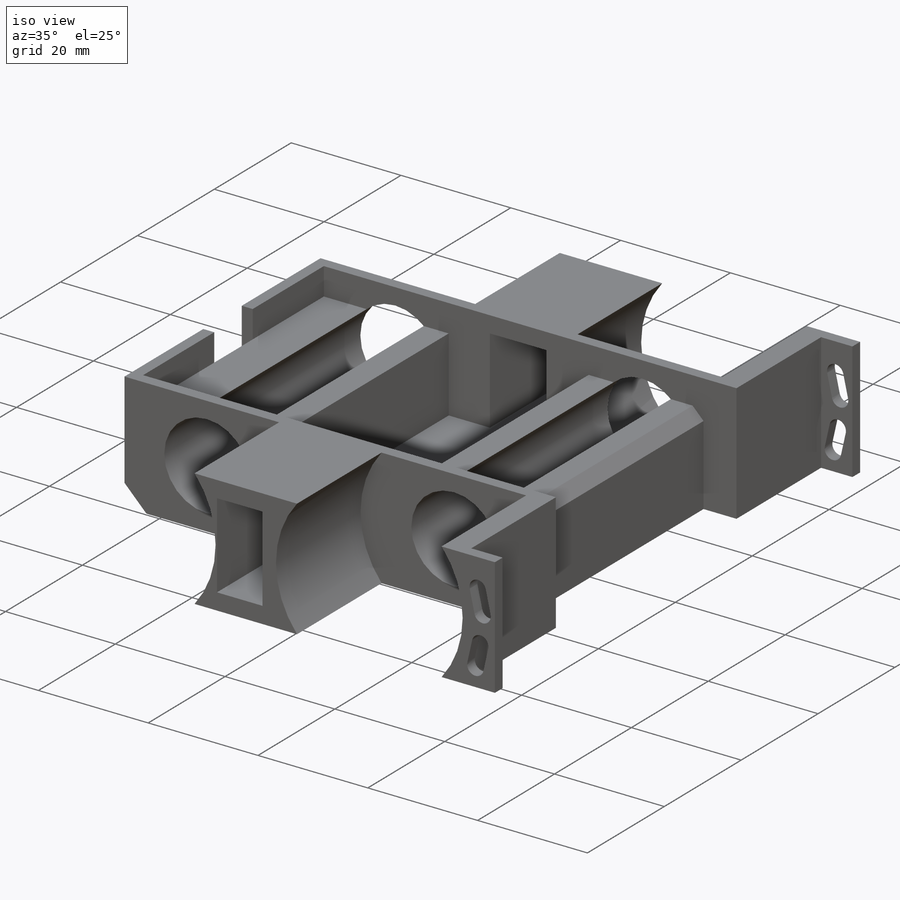
[diagram: iso view]
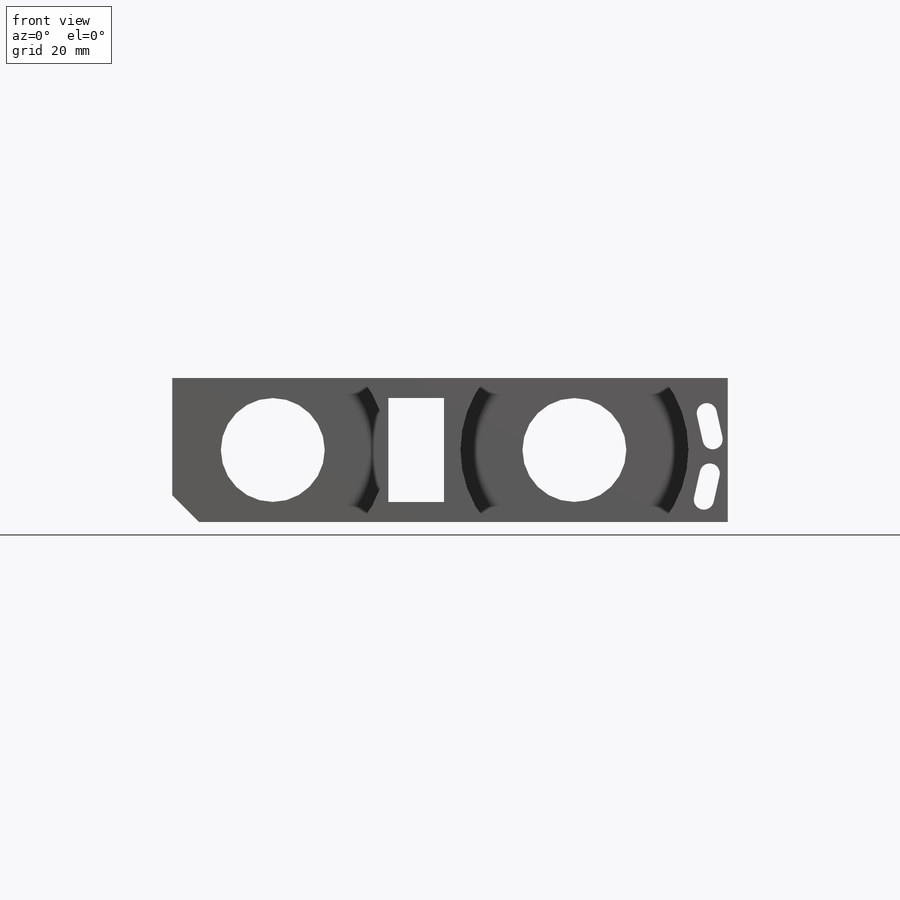
[diagram: front view]
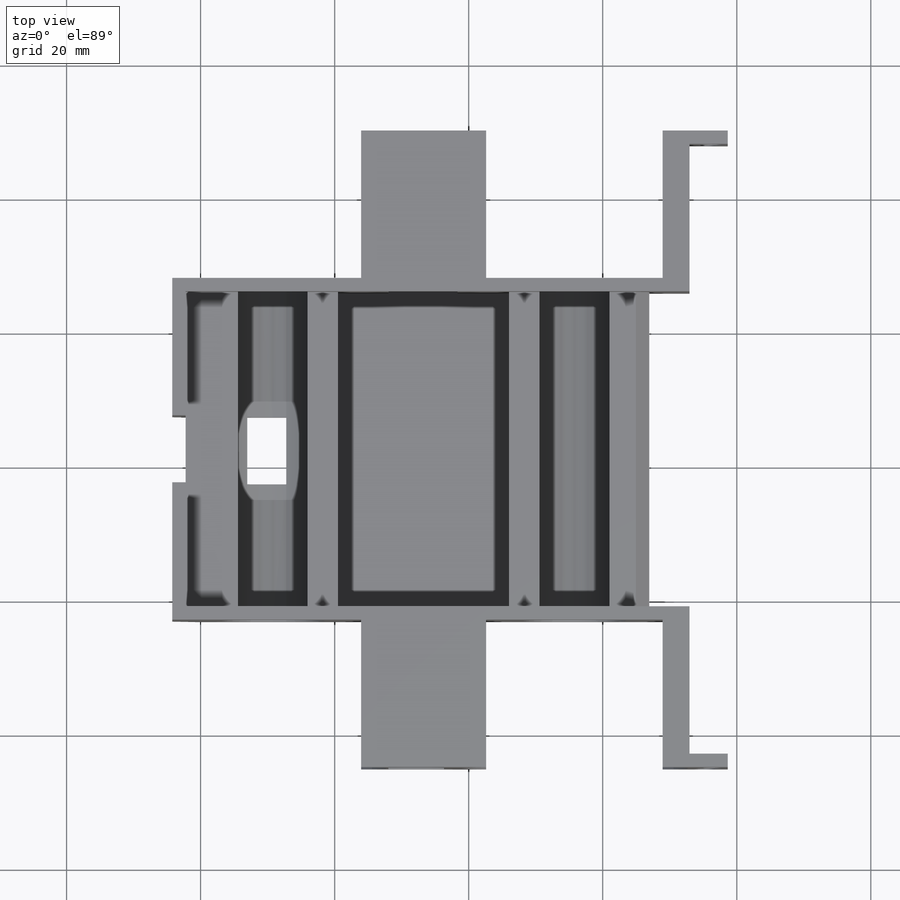
[diagram: top view]
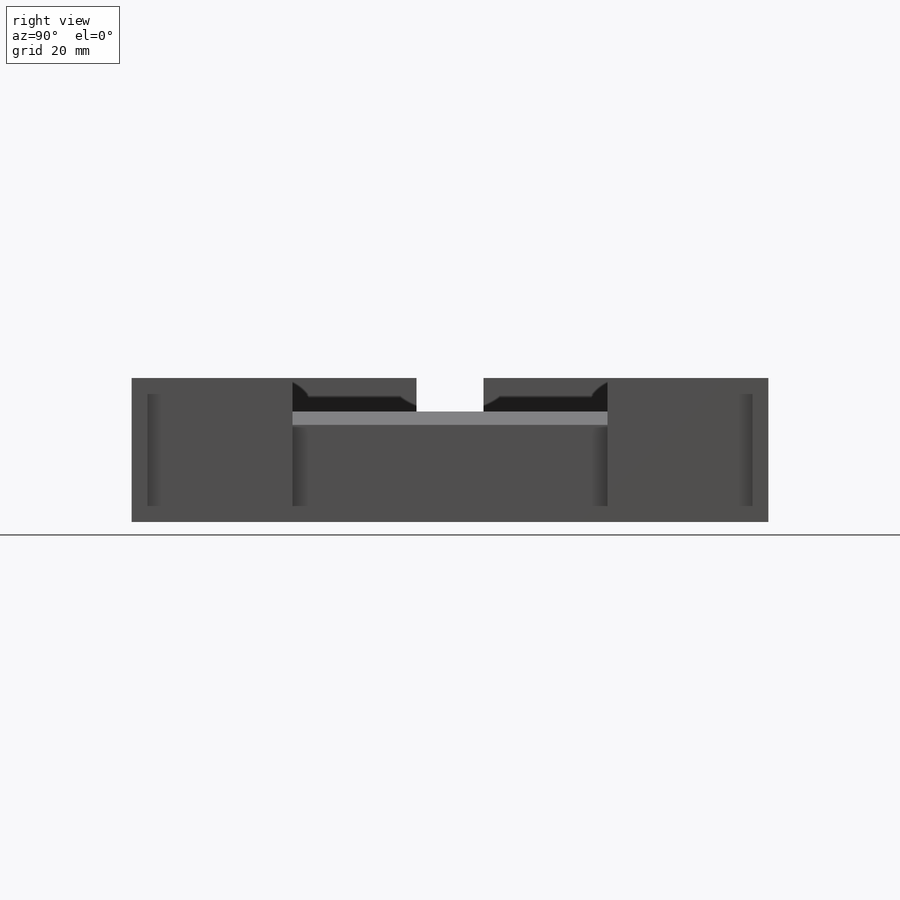
[diagram: right view]
SOLIDWORKS PART (.sldprt)
format: sldprt  version: not decoded by parser v0  size: 597,504 bytes
history: native  units: mm
features: sketch x19, cut_extrude x18, fillet x4, chamfer x4, material x1, extrude x1 (+13 scaffold rows collapsed)
feature tree (60):
  scaffold x13  (default folders/planes/origin — collapsed)
  material  "Material <not specified>"
  sketch  "Sketch1"  dims[D1=95.0mm D2=95.0mm]
  extrude  "Boss-Extrude1"  Depth=25mm
  sketch  "Sketch2"  dims[c1.D1=47.0mm c1.D2=15.0mm c2.D1=45.0mm c2.D2=10.75mm c2.D3=15.0mm]
  cut_extrude  "Cut-Extrude2"  Depth=100mm
  sketch  "Sketch3"  dims[D1=45.0mm D2=10.75mm D3=10.75mm]
  cut_extrude  "Cut-Extrude3"  Depth=22mm
  sketch  "Sketch4"  dims[D1=~14.061754mm]
  cut_extrude  "Cut-Extrude4"  Depth=22mm
  sketch  "Sketch5"
  cut_extrude  "Cut-Extrude5"  Depth=22mm
  sketch  "Sketch6"
  cut_extrude  "Cut-Extrude6"  Depth=22mm
  sketch  "Sketch8"  dims[D1=3.5mm D2=10.75mm]
  cut_extrude  "Cut-Extrude7"  Depth=100mm
  sketch  "Sketch9"  dims[D1=8.3mm D2=15.5mm D3=3.0mm D4=17.25mm D5=19.45mm]
  cut_extrude  "Cut-Extrude11"  Depth=100mm
  sketch  "Sketch13"  dims[D1=4.0mm D2=4.0mm]
  cut_extrude  "Cut-Extrude12"  Depth=2mm
  sketch  "Sketch14"  dims[c1.D1=25.0mm c1.D2=2.0mm c1.D3=2.5mm c2.D1=2.0mm c2.D3=2.0mm c2.D4=2.0mm]
  cut_extrude  "Cut-Extrude14"  Depth=18.5mm
  sketch  "Sketch16"  dims[D1=2.0mm D2=2.0mm D3=2.0mm D4=2.0mm]
  cut_extrude  "Cut-Extrude15"  Depth=5mm
  sketch  "Sketch17"  dims[D1=2.0mm D2=2.0mm]
  cut_extrude  "Cut-Extrude16"  Depth=5mm
  sketch  "Sketch18"  dims[D1=44.0mm D2=38.0mm D3=2.0mm D4=5.0mm D5=2.0mm D6=5.0mm]
  cut_extrude  "Cut-Extrude17"  Depth=100mm
  fillet  "Fillet6"  Radius=1.5mm
  fillet  "Fillet7"  Radius=1.5mm
  fillet  "Fillet8"  Radius=1.5mm
  fillet  "Fillet9"  Radius=1.5mm
  sketch  "Sketch19"
  cut_extrude  "Cut-Extrude20"  Depth=100mm
  sketch  "Sketch20"  dims[D1=2.0mm D2=2.0mm D3=4.0mm]
  cut_extrude  "Cut-Extrude23"  Depth=100mm
  sketch  "Sketch21"  dims[D1=2.0mm]
  cut_extrude  "Cut-Extrude26"  Depth=40mm
  chamfer  "Chamfer1"  Distance=2mm Angle=45deg
  sketch  "Sketch22"  dims[D1=10.0mm D2=15.0mm D3=2.0mm D4=20.5mm D5=20.5mm]
  cut_extrude  "Cut-Extrude27"  Depth=4mm
  sketch  "Sketch23"  dims[D1=10.0mm]
  cut_extrude  "Cut-Extrude28"  Depth=54mm
  chamfer  "Chamfer2"  Distance=2mm Angle=45deg
  chamfer  "Chamfer3"  Distance=4mm Angle=45deg
  chamfer  "Chamfer4"  Distance=4mm Angle=45deg
  sketch  "Sketch24"  dims[c1.D1=3.0mm c1.D2=3.0mm c1.D3=3.0mm c1.D4=3.0mm c2.D1=4.0mm]
  cut_extrude  "Cut-Extrude29"  Depth=100mm
decode coverage: 43 of 46 modeling features carry decoded parameters
note: ~ marks probable driven/reference dimensions
note: suppression state not decoded; provenance and decode notes live in map.json
